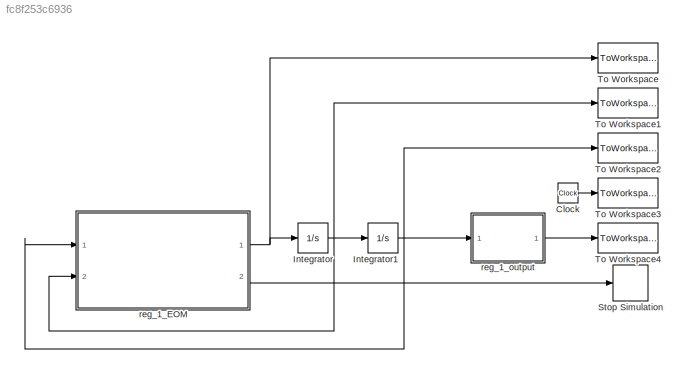
MODEL slx_fc8f253c6936
KIND model
CONFIG AbsTol = auto
CONFIG EnableMultiTasking = off
CONFIG FixedStep = auto
CONFIG MaxStep = 1e-4
CONFIG MinStep = auto
CONFIG RelTol = 1e-9
CONFIG SampleTimeConstraint = Unconstrained
CONFIG Solver = VariableStepAuto
CONFIG SolverName = VariableStepAuto
CONFIG StartTime = reg1.ti
CONFIG StopTime = inf
BLOCK [Clock] Clock
BLOCK [Integrator] Integrator
  InitialCondition = reg1.xi_dot
  Ports = [1, 1]
BLOCK [Integrator] Integrator1
  InitialCondition = reg1.xi
  Ports = [1, 1]
BLOCK [Stop] Stop Simulation
BLOCK [ToWorkspace] To Workspace
  FixptAsFi = on
  MaxDataPoints = inf
  Ports = [1]
  SampleTime = -1
  VariableName = x_ddot
BLOCK [ToWorkspace] To Workspace1
  FixptAsFi = on
  MaxDataPoints = inf
  Ports = [1]
  SampleTime = -1
  VariableName = x_dot
BLOCK [ToWorkspace] To Workspace2
  FixptAsFi = on
  MaxDataPoints = inf
  Ports = [1]
  SampleTime = -1
  VariableName = x
BLOCK [ToWorkspace] To Workspace3
  FixptAsFi = on
  MaxDataPoints = inf
  Ports = [1]
  SampleTime = -1
  VariableName = t
BLOCK [ToWorkspace] To Workspace4
  FixptAsFi = on
  MaxDataPoints = inf
  Ports = [1]
  SampleTime = -1
  VariableName = y
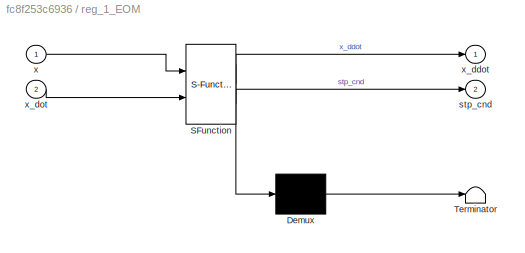
BLOCK [SubSystem] reg_1_EOM
  ErrorFcn = Stateflow.Translate.translate
  PermitHierarchicalResolution = ExplicitOnly
  Ports = [2, 2]
  RequestExecContextInheritance = off
  SFBlockType = MATLAB Function
  TreatAsAtomicUnit = on
BLOCK [Demux] reg_1_EOM/ Demux 
  Outputs = 1
  Ports = [1, 1]
BLOCK [S-Function] reg_1_EOM/ SFunction 
  EnableBusSupport = on
  FunctionName = sf_sfun
  Parameters = P
  PortCounts = [2 3]
  Ports = [2, 3]
  SFcnIsStateOwnerBlock = off
  SFunctionDeploymentMode = off
  Tag = Stateflow S-Function 2
BLOCK [Terminator] reg_1_EOM/ Terminator 
BLOCK [Outport] reg_1_EOM/stp_cnd
  Port = 2
  VectorParamsAs1DForOutWhenUnconnected = off
BLOCK [Inport] reg_1_EOM/x
BLOCK [Outport] reg_1_EOM/x_ddot
  VectorParamsAs1DForOutWhenUnconnected = off
BLOCK [Inport] reg_1_EOM/x_dot
  Port = 2
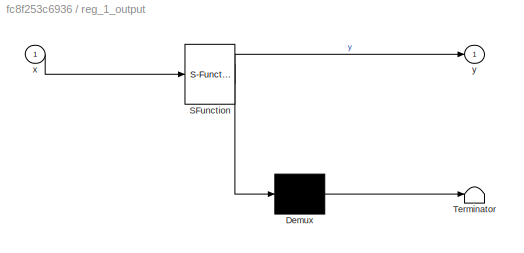
BLOCK [SubSystem] reg_1_output
  ErrorFcn = Stateflow.Translate.translate
  PermitHierarchicalResolution = ExplicitOnly
  Ports = [1, 1]
  RequestExecContextInheritance = off
  SFBlockType = MATLAB Function
  TreatAsAtomicUnit = on
BLOCK [Demux] reg_1_output/ Demux 
  Outputs = 1
  Ports = [1, 1]
BLOCK [S-Function] reg_1_output/ SFunction 
  EnableBusSupport = on
  FunctionName = sf_sfun
  Parameters = P
  PortCounts = [1 2]
  Ports = [1, 2]
  SFcnIsStateOwnerBlock = off
  SFunctionDeploymentMode = off
  Tag = Stateflow S-Function 1
BLOCK [Terminator] reg_1_output/ Terminator 
BLOCK [Inport] reg_1_output/x
BLOCK [Outport] reg_1_output/y
  VectorParamsAs1DForOutWhenUnconnected = off
LINE Clock:1 -> To Workspace3:1
NET Integrator1:1 -> To Workspace2:1, reg_1_EOM:1, reg_1_output:1
NET Integrator:1 -> Integrator1:1, To Workspace1:1, reg_1_EOM:2
NET reg_1_EOM:1 -> Integrator:1, To Workspace:1
LINE reg_1_EOM:2 -> Stop Simulation:1
LINE reg_1_output:1 -> To Workspace4:1
note: NET lines group one-source signal fan-out (src -> all destinations, sorted); 1:1 wires keep LINE
CHART reg_1_output states=1 transitions=1
  STATE_LABEL 'eML_blk_kernel()'
  STATE_LABEL 'SCRIPT:\n%% Regime 1 output equations\n%\n% This function is responsible for converting the state variables in x to\n% the x- and y-coordinates for each point in the mechanism.\n%\n% This function takes in the following parameters\n%   x           The state vector representing the angle of each link\n%   P           A MATLAB struct containing all of the constant parameters\n% \n% The function returns the fo...<+807ch>'
CHART reg_1_EOM states=1 transitions=1
  STATE_LABEL 'eML_blk_kernel()'
  STATE_LABEL 'SCRIPT:\n% Regime 1 equations of motion\n%\n% This function is responsible for determining the time rate-of-change of\n% the state vector representing the angle of each link making up the\n% walking arm trebuchet during Regime 1.\n%\n% Regime 1 is the falling regime in which the entire mechanism falls until\n% point A impacts with the ground.\n%\n% This function takes in the following parameters\n%   x      ...<+2567ch>'
